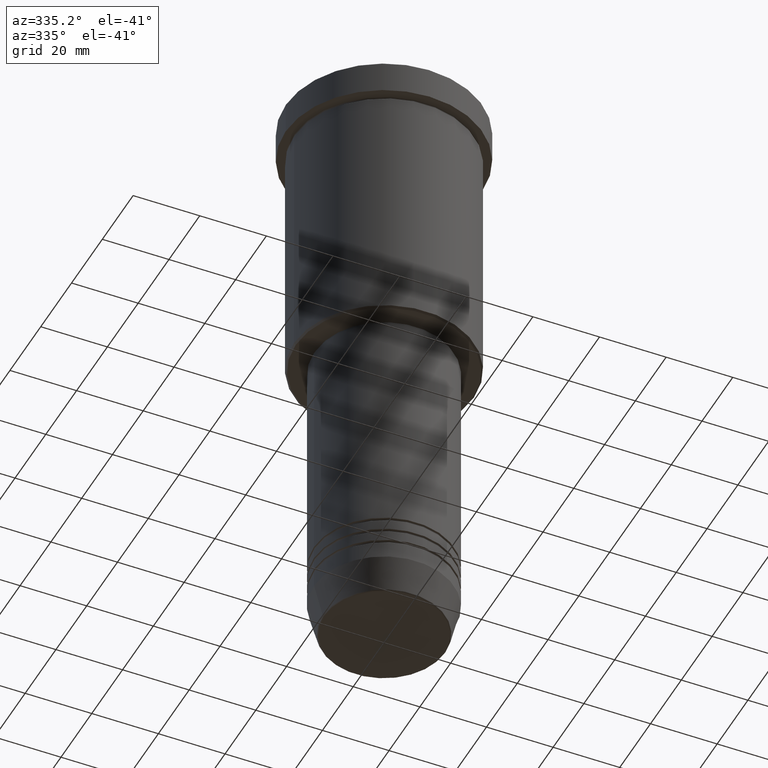
[diagram: clean part render]
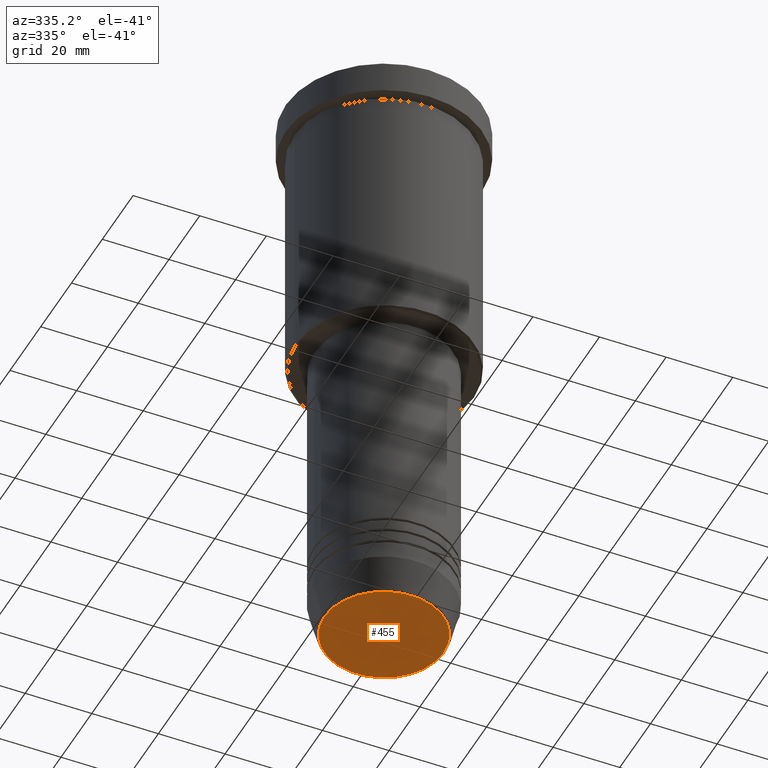
[diagram: same view with one face highlighted and labeled with its STEP entity id]
A machine part, auxiliary view. The second image highlights one B-rep face of the part: STEP entity #455.
In plain terms, the highlighted planar face has unit normal (0, -0, 1).
Its self-contained STEP definition (entity closure, byte-faithful):
#20 = CIRCLE ( 'NONE', #108, 17.93684458169929030 ) ;
#38 = DIRECTION ( 'NONE',  ( 0.000000000000000000, -0.000000000000000000, 1.000000000000000000 ) ) ;
#45 = CARTESIAN_POINT ( 'NONE',  ( 0.000000000000000000, 0.000000000000000000, -181.0000000000000000 ) ) ;
#59 = AXIS2_PLACEMENT_3D ( 'NONE', #1120, #38, #404 ) ;
#66 = EDGE_CURVE ( 'NONE', #1152, #331, #915, .T. ) ;
#108 = AXIS2_PLACEMENT_3D ( 'NONE', #603, #243, #887 ) ;
#159 = EDGE_LOOP ( 'NONE', ( #419, #831 ) ) ;
#203 = CARTESIAN_POINT ( 'NONE',  ( 17.93684458169929030, 0.000000000000000000, -181.0000000000000000 ) ) ;
#243 = DIRECTION ( 'NONE',  ( 0.000000000000000000, 0.000000000000000000, -1.000000000000000000 ) ) ;
#314 = DIRECTION ( 'NONE',  ( 1.000000000000000000, 0.000000000000000000, 0.000000000000000000 ) ) ;
#331 = VERTEX_POINT ( 'NONE', #616 ) ;
#393 = DIRECTION ( 'NONE',  ( 0.000000000000000000, 0.000000000000000000, -1.000000000000000000 ) ) ;
#404 = DIRECTION ( 'NONE',  ( 1.000000000000000000, 0.000000000000000000, 0.000000000000000000 ) ) ;
#419 = ORIENTED_EDGE ( 'NONE', *, *, #66, .T. ) ;
#455 = ADVANCED_FACE ( 'NONE', ( #574 ), #1037, .F. ) ;
#574 = FACE_OUTER_BOUND ( 'NONE', #159, .T. ) ;
#603 = CARTESIAN_POINT ( 'NONE',  ( 0.000000000000000000, 0.000000000000000000, -181.0000000000000000 ) ) ;
#616 = CARTESIAN_POINT ( 'NONE',  ( -17.93684458169929030, 2.226202879662624346E-15, -181.0000000000000000 ) ) ;
#823 = AXIS2_PLACEMENT_3D ( 'NONE', #45, #393, #314 ) ;
#831 = ORIENTED_EDGE ( 'NONE', *, *, #1046, .T. ) ;
#887 = DIRECTION ( 'NONE',  ( 1.000000000000000000, 0.000000000000000000, 0.000000000000000000 ) ) ;
#915 = CIRCLE ( 'NONE', #823, 17.93684458169929030 ) ;
#1037 = PLANE ( 'NONE',  #59 ) ;
#1046 = EDGE_CURVE ( 'NONE', #331, #1152, #20, .T. ) ;
#1120 = CARTESIAN_POINT ( 'NONE',  ( 0.000000000000000000, 0.000000000000000000, -181.0000000000000000 ) ) ;
#1152 = VERTEX_POINT ( 'NONE', #203 ) ;